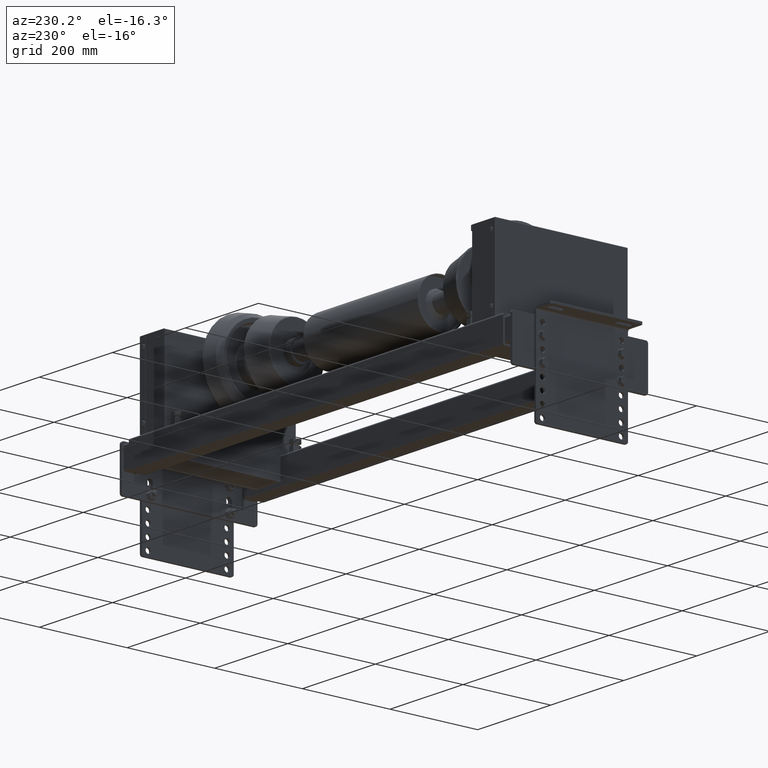
[diagram: clean part render]
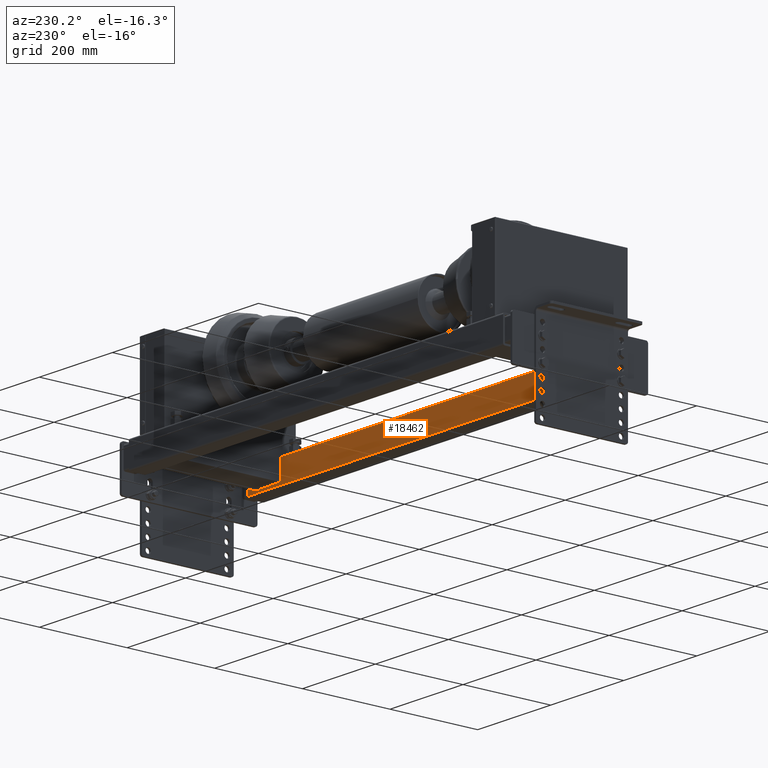
[diagram: same view with one face highlighted and labeled with its STEP entity id]
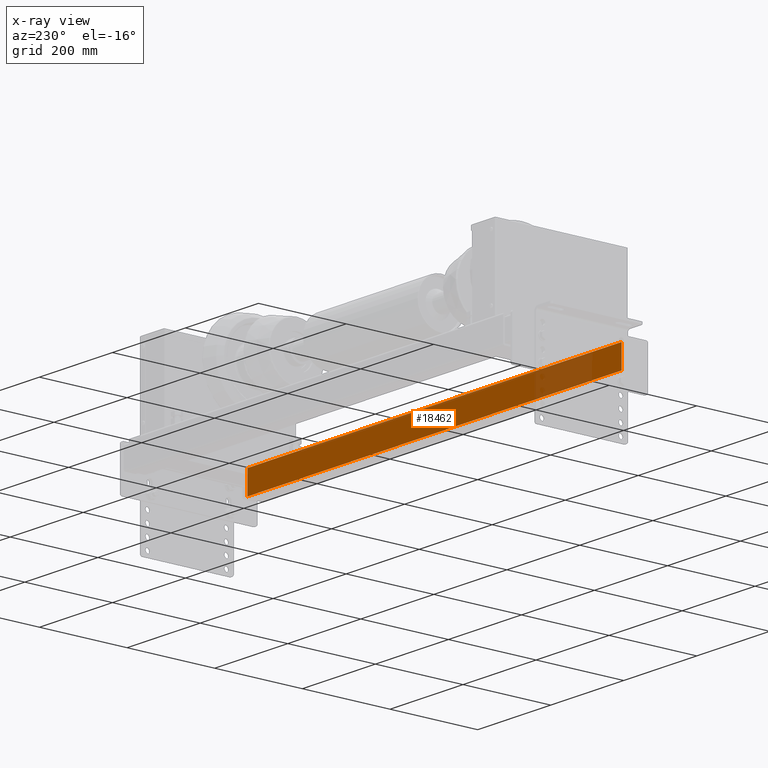
[diagram: x-ray of the same camera — body ghosted, the highlighted face saturated]
A machine part, auxiliary view. The second image highlights one B-rep face of the part: STEP entity #18462.
The next image is the same camera in x-ray: the body ghosted, the highlighted face saturated — about 15% of this face is hidden behind the body in this view.
In plain terms, the highlighted planar face has unit normal (-0, 1, -0).
Its self-contained STEP definition (entity closure, byte-faithful):
#18404=CARTESIAN_POINT('',(20.0,26.0,620.0));
#18405=VERTEX_POINT('',#18404);
#18413=CARTESIAN_POINT('',(20.0,26.0,-405.0));
#18414=VERTEX_POINT('',#18413);
#18415=CARTESIAN_POINT('',(20.0,26.0,-405.0));
#18416=DIRECTION('',(0.0,0.0,1.0));
#18417=VECTOR('',#18416,1025.0);
#18418=LINE('',#18415,#18417);
#18419=EDGE_CURVE('',#18414,#18405,#18418,.T.);
#18432=CARTESIAN_POINT('',(20.0,26.0,-405.0));
#18433=DIRECTION('',(1.0,0.0,0.0));
#18434=DIRECTION('',(0.0,0.0,-1.0));
#18435=AXIS2_PLACEMENT_3D('',#18432,#18433,#18434);
#18436=PLANE('',#18435);
#18437=CARTESIAN_POINT('',(20.0,-25.999999999999886,620.0));
#18438=VERTEX_POINT('',#18437);
#18439=CARTESIAN_POINT('',(20.0,26.0,620.0));
#18440=DIRECTION('',(0.0,-1.0,0.0));
#18441=VECTOR('',#18440,51.999999999999886);
#18442=LINE('',#18439,#18441);
#18443=EDGE_CURVE('',#18405,#18438,#18442,.T.);
#18444=ORIENTED_EDGE('',*,*,#18443,.T.);
#18445=CARTESIAN_POINT('',(20.0,-25.999999999999886,-405.0));
#18446=VERTEX_POINT('',#18445);
#18447=CARTESIAN_POINT('',(20.0,-25.999999999999886,-405.0));
#18448=DIRECTION('',(0.0,0.0,1.0));
#18449=VECTOR('',#18448,1025.0);
#18450=LINE('',#18447,#18449);
#18451=EDGE_CURVE('',#18446,#18438,#18450,.T.);
#18452=ORIENTED_EDGE('',*,*,#18451,.F.);
#18453=CARTESIAN_POINT('',(20.0,26.0,-405.0));
#18454=DIRECTION('',(0.0,-1.0,0.0));
#18455=VECTOR('',#18454,51.999999999999886);
#18456=LINE('',#18453,#18455);
#18457=EDGE_CURVE('',#18414,#18446,#18456,.T.);
#18458=ORIENTED_EDGE('',*,*,#18457,.F.);
#18459=ORIENTED_EDGE('',*,*,#18419,.T.);
#18460=EDGE_LOOP('',(#18444,#18452,#18458,#18459));
#18461=FACE_OUTER_BOUND('',#18460,.T.);
#18462=ADVANCED_FACE('',(#18461),#18436,.T.);